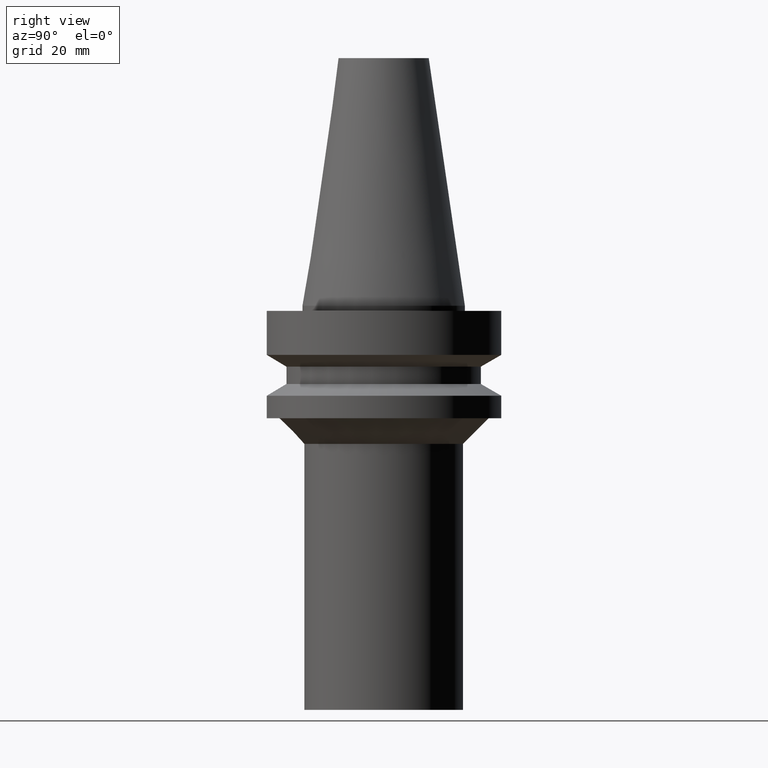
[diagram: clean part render]
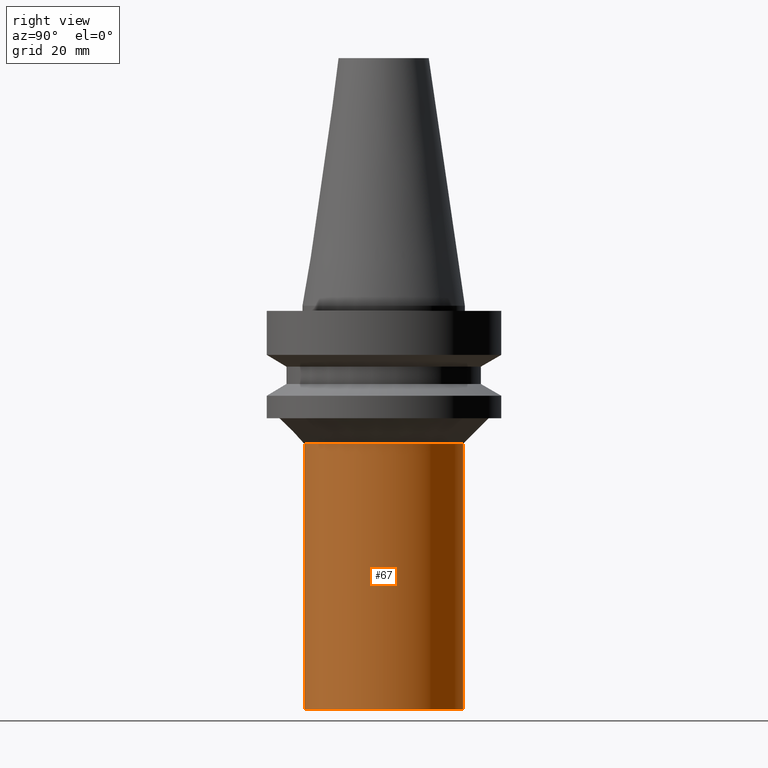
[diagram: same view with one face highlighted and labeled with its STEP entity id]
A machine part, right view. The second image highlights one B-rep face of the part: STEP entity #67.
In plain terms, the highlighted cylindrical surface (bore or boss wall) has radius 15.5 mm, axis along (0, 0, -1).
Its self-contained STEP definition (entity closure, byte-faithful):
#64=EDGE_CURVE('Unnamed[1]',#155,#155,#156,.T.);
#67=ADVANCED_FACE('Unnamed[1]',(#159,#160),#161,.T.);
#69=EDGE_CURVE('Unnamed[1]',#163,#163,#164,.T.);
#155=VERTEX_POINT('',#269);
#156=CIRCLE('',#270,15.5);
#159=FACE_BOUND('',#274,.T.);
#160=FACE_BOUND('',#275,.T.);
#161=CYLINDRICAL_SURFACE('',#276,15.5);
#163=VERTEX_POINT('',#279);
#164=CIRCLE('',#280,15.5);
#269=CARTESIAN_POINT('',(1.75415237890776E-014,15.5,-79.0000000000008));
#270=AXIS2_PLACEMENT_3D('',#394,#395,#396);
#274=EDGE_LOOP('',(#398));
#275=EDGE_LOOP('',(#399));
#276=AXIS2_PLACEMENT_3D('',#400,#401,#402);
#279=CARTESIAN_POINT('',(5.99520433297585E-015,15.5,-27.0));
#280=AXIS2_PLACEMENT_3D('',#403,#404,#405);
#394=CARTESIAN_POINT('',(1.75415237890776E-014,9.67470971326418E-015,-79.0000000000008));
#395=DIRECTION('',(2.22044604925031E-016,1.22464679914735E-016,-1.0));
#396=DIRECTION('',(-6.16297582203915E-033,1.0,1.22464679914735E-016));
#398=ORIENTED_EDGE('',*,*,#64,.F.);
#399=ORIENTED_EDGE('',*,*,#69,.T.);
#400=CARTESIAN_POINT('',(1.17683640610267E-014,6.49062803548102E-015,-53.0000000000004));
#401=DIRECTION('',(2.22044604925031E-016,1.22464679914735E-016,-1.0));
#402=DIRECTION('',(-6.16297582203915E-033,1.0,1.22464679914735E-016));
#403=CARTESIAN_POINT('',(5.99520433297585E-015,3.30654635769785E-015,-27.0));
#404=DIRECTION('',(2.22044604925031E-016,1.22464679914735E-016,-1.0));
#405=DIRECTION('',(-6.16297582203915E-033,1.0,1.22464679914735E-016));